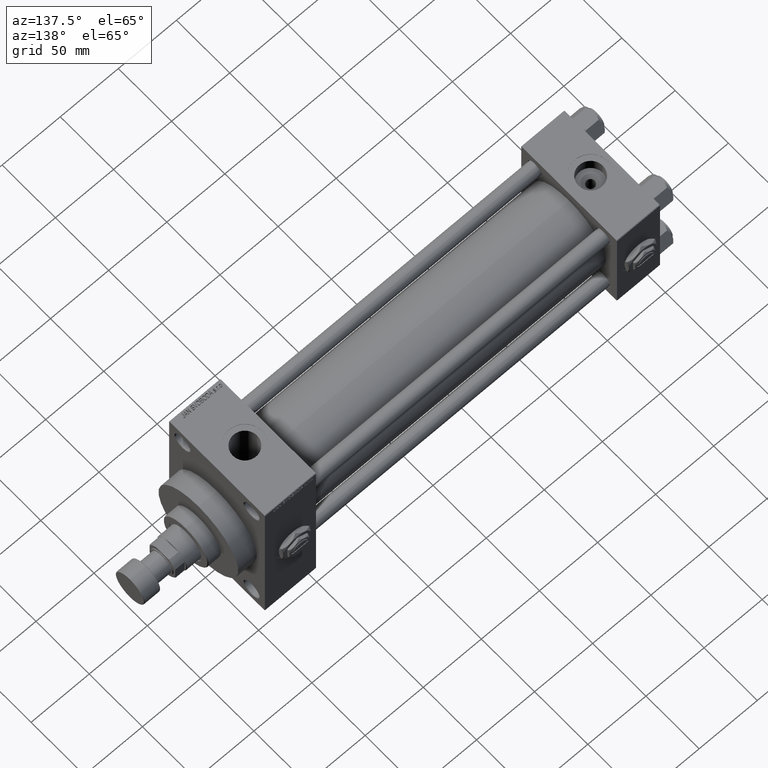
[diagram: clean part render]
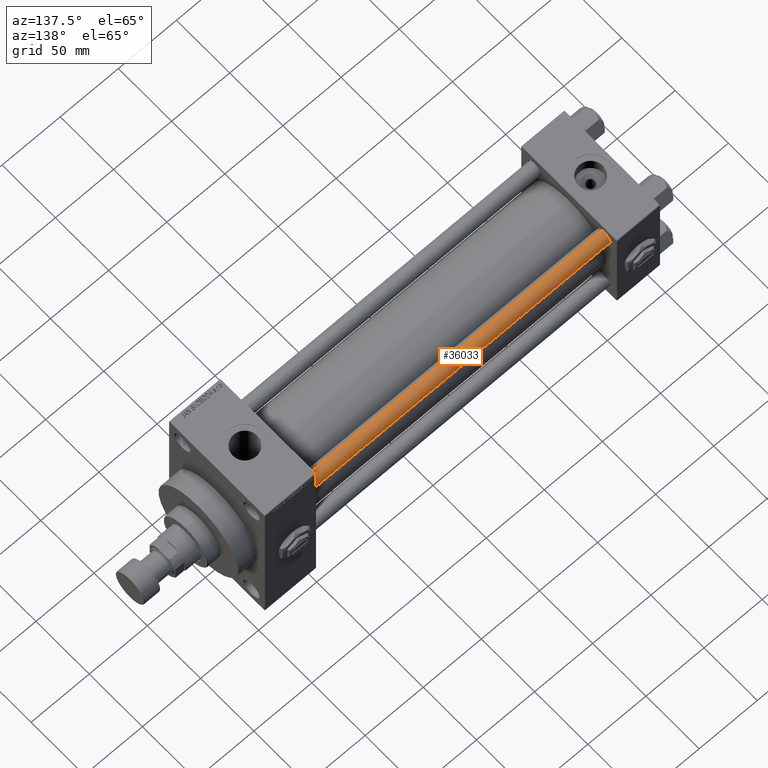
[diagram: same view with one face highlighted and labeled with its STEP entity id]
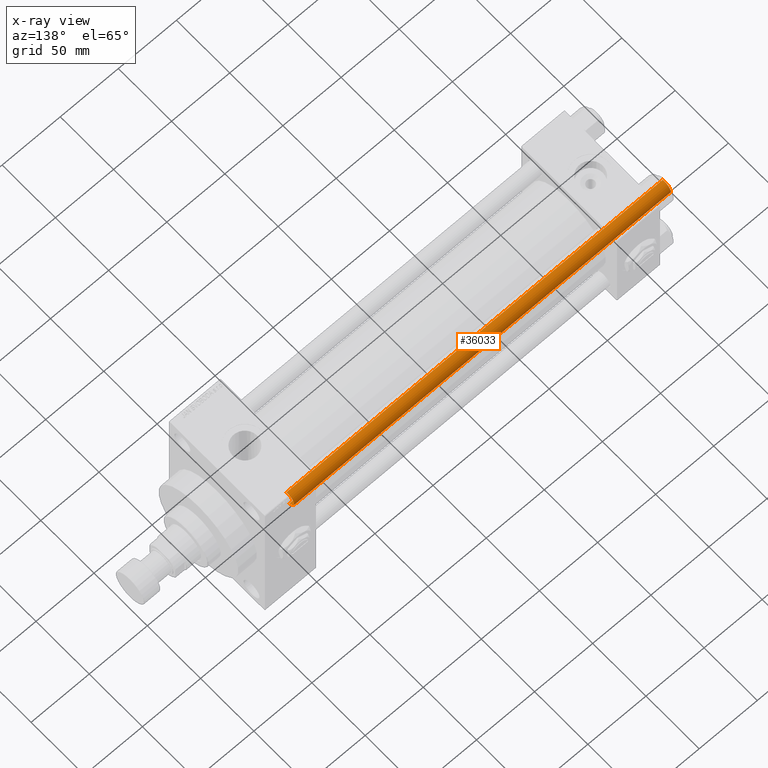
[diagram: x-ray of the same camera — body ghosted, the highlighted face saturated]
A machine part, auxiliary view. The second image highlights one B-rep face of the part: STEP entity #36033.
The next image is the same camera in x-ray: the body ghosted, the highlighted face saturated — about 0% of this face is hidden behind the body in this view.
In plain terms, the highlighted cylindrical surface (edge-blend (fillet) strip) has radius 6 mm, axis along (-1, -0, 0).
Its self-contained STEP definition (entity closure, byte-faithful):
#207 = ORIENTED_EDGE ( 'NONE', *, *, #35754, .T. ) ;
#779 = EDGE_CURVE ( 'NONE', #29036, #41744, #43980, .T. ) ;
#1861 = AXIS2_PLACEMENT_3D ( 'NONE', #46919, #46427, #19034 ) ;
#2857 = VECTOR ( 'NONE', #4177, 1000.000000000000000 ) ;
#4177 = DIRECTION ( 'NONE',  ( -0.000000000000000000, -0.000000000000000000, -1.000000000000000000 ) ) ;
#4419 = CYLINDRICAL_SURFACE ( 'NONE', #1861, 6.000000000000000888 ) ;
#5069 = CARTESIAN_POINT ( 'NONE',  ( -6.000000000000000888, 0.000000000000000000, 0.5000000000000004441 ) ) ;
#6217 = ORIENTED_EDGE ( 'NONE', *, *, #22045, .T. ) ;
#9575 = ORIENTED_EDGE ( 'NONE', *, *, #779, .T. ) ;
#11083 = CARTESIAN_POINT ( 'NONE',  ( 0.000000000000000000, 0.000000000000000000, 324.5000000000001137 ) ) ;
#11171 = AXIS2_PLACEMENT_3D ( 'NONE', #11083, #26167, #26928 ) ;
#12480 = CARTESIAN_POINT ( 'NONE',  ( 6.000000000000000888, 7.347880794884120722E-16, 324.5000000000001137 ) ) ;
#14188 = EDGE_CURVE ( 'NONE', #47185, #23430, #46675, .T. ) ;
#16806 = DIRECTION ( 'NONE',  ( 1.000000000000000000, 0.000000000000000000, 0.000000000000000000 ) ) ;
#17532 = CARTESIAN_POINT ( 'NONE',  ( 0.000000000000000000, 0.000000000000000000, 0.5000000000000004441 ) ) ;
#19034 = DIRECTION ( 'NONE',  ( -1.000000000000000000, 0.000000000000000000, 0.000000000000000000 ) ) ;
#22045 = EDGE_CURVE ( 'NONE', #47185, #29036, #35309, .T. ) ;
#23315 = CARTESIAN_POINT ( 'NONE',  ( -6.000000000000000888, 0.000000000000000000, 325.0000000000000000 ) ) ;
#23430 = VERTEX_POINT ( 'NONE', #5069 ) ;
#26167 = DIRECTION ( 'NONE',  ( 0.000000000000000000, 0.000000000000000000, -1.000000000000000000 ) ) ;
#26928 = DIRECTION ( 'NONE',  ( 1.000000000000000000, 0.000000000000000000, 0.000000000000000000 ) ) ;
#27069 = FACE_OUTER_BOUND ( 'NONE', #34292, .T. ) ;
#28098 = CARTESIAN_POINT ( 'NONE',  ( 6.000000000000000888, 7.347880794884120722E-16, 0.5000000000000004441 ) ) ;
#28390 = CIRCLE ( 'NONE', #46897, 6.000000000000000888 ) ;
#29036 = VERTEX_POINT ( 'NONE', #12480 ) ;
#29074 = DIRECTION ( 'NONE',  ( -0.000000000000000000, -0.000000000000000000, 1.000000000000000000 ) ) ;
#34292 = EDGE_LOOP ( 'NONE', ( #6217, #9575, #207, #40896 ) ) ;
#35309 = CIRCLE ( 'NONE', #11171, 6.000000000000000888 ) ;
#35754 = EDGE_CURVE ( 'NONE', #41744, #23430, #28390, .T. ) ;
#36033 = ADVANCED_FACE ( 'NONE', ( #27069 ), #4419, .T. ) ;
#37429 = CARTESIAN_POINT ( 'NONE',  ( 6.000000000000000888, 7.347880794884120722E-16, 325.0000000000000000 ) ) ;
#39955 = CARTESIAN_POINT ( 'NONE',  ( -6.000000000000000888, 0.000000000000000000, 324.5000000000001137 ) ) ;
#40896 = ORIENTED_EDGE ( 'NONE', *, *, #14188, .F. ) ;
#41744 = VERTEX_POINT ( 'NONE', #28098 ) ;
#42709 = VECTOR ( 'NONE', #44476, 1000.000000000000000 ) ;
#43980 = LINE ( 'NONE', #37429, #42709 ) ;
#44476 = DIRECTION ( 'NONE',  ( -0.000000000000000000, -0.000000000000000000, -1.000000000000000000 ) ) ;
#46427 = DIRECTION ( 'NONE',  ( -0.000000000000000000, -0.000000000000000000, -1.000000000000000000 ) ) ;
#46675 = LINE ( 'NONE', #23315, #2857 ) ;
#46897 = AXIS2_PLACEMENT_3D ( 'NONE', #17532, #29074, #16806 ) ;
#46919 = CARTESIAN_POINT ( 'NONE',  ( 0.000000000000000000, 0.000000000000000000, 325.0000000000000000 ) ) ;
#47185 = VERTEX_POINT ( 'NONE', #39955 ) ;